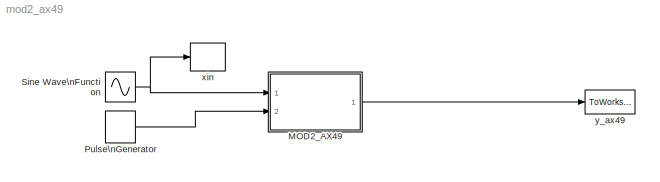
MODEL mod2_ax49
KIND model
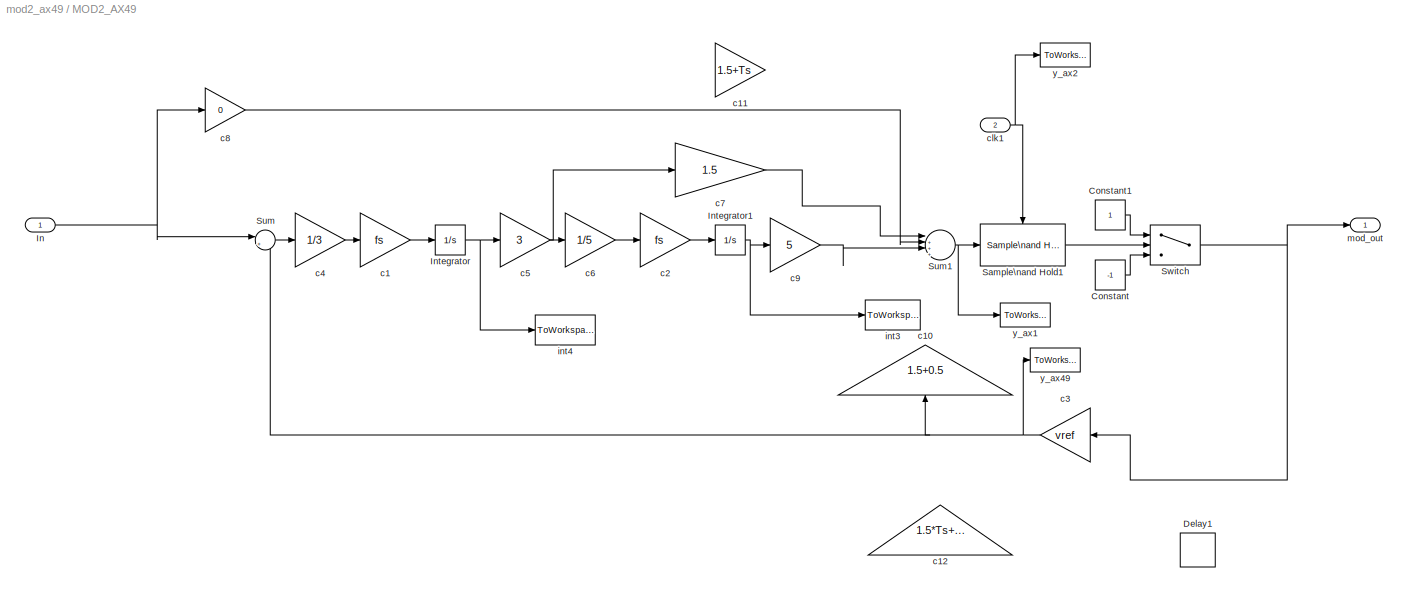
BLOCK [SubSystem] MOD2_AX49
  Ports = [2, 1]
  RequestExecContextInheritance = off
  SID = 988
BLOCK [Constant] MOD2_AX49/Constant
  SID = 1156
  Value = -1
BLOCK [Constant] MOD2_AX49/Constant1
  SID = 1157
BLOCK [Delay] MOD2_AX49/Delay1
  Commented = on
  DelayLength = 1
  InitialCondition = 0
  InputPortMap = u0
  Ports = [1, 1]
  SID = 1229
  SampleTime = Ts
BLOCK [Inport] MOD2_AX49/In
  IconDisplay = Port number
  SID = 989
BLOCK [Integrator] MOD2_AX49/Integrator
  Ports = [1, 1]
  SID = 1124
BLOCK [Integrator] MOD2_AX49/Integrator1
  Ports = [1, 1]
  SID = 1164
BLOCK [Reference] MOD2_AX49/Sample\nand Hold1  REF=dspsigops/Sample\nand Hold
  Ports = [1, 1, 0, 1]
  RTWMemSecDataConstants = Inherit from model
  RTWMemSecDataInternal = Inherit from model
  RTWMemSecDataParameters = Inherit from model
  RTWMemSecFuncExecute = Inherit from model
  RTWMemSecFuncInitTerm = Inherit from model
  SID = 1174
  SourceBlock = dspsigops/Sample\nand Hold
  SourceProductBaseCode = DS
  SourceProductName = DSP System Toolbox
  SourceType = Sample and Hold
  initCond = 0
  latchinput = off
  trig = Rising edge
BLOCK [Sum] MOD2_AX49/Sum
  IconShape = round
  InputSameDT = off
  Inputs = |+-
  OutDataTypeStr = Inherit: Inherit via internal rule
  Ports = [2, 1]
  SID = 1134
  SaturateOnIntegerOverflow = off
BLOCK [Sum] MOD2_AX49/Sum1
  IconShape = round
  InputSameDT = off
  Inputs = |+++-
  OutDataTypeStr = Inherit: Inherit via internal rule
  Ports = [4, 1]
  SID = 1135
  SaturateOnIntegerOverflow = off
BLOCK [Switch] MOD2_AX49/Switch
  Criteria = u2 > Threshold
  InputSameDT = off
  SID = 1155
  SaturateOnIntegerOverflow = off
BLOCK [Gain] MOD2_AX49/c1
  Gain = fs
  SID = 1158
BLOCK [Gain] MOD2_AX49/c10
  Commented = on
  Gain = 1.5+0.5
  SID = 1170
BLOCK [Gain] MOD2_AX49/c11
  Commented = on
  Gain = 1.5+Ts
  SID = 1171
BLOCK [Gain] MOD2_AX49/c12
  Commented = on
  Gain = 1.5*Ts+0.5*Ts*Ts
  SID = 1172
BLOCK [Gain] MOD2_AX49/c2
  Gain = fs
  SID = 1165
BLOCK [Gain] MOD2_AX49/c3
  Gain = vref
  SID = 1154
BLOCK [Gain] MOD2_AX49/c4
  Gain = 1/3
  SID = 1160
BLOCK [Gain] MOD2_AX49/c5
  Gain = 3
  SID = 1161
BLOCK [Gain] MOD2_AX49/c6
  Gain = 1/5
  SID = 1162
BLOCK [Gain] MOD2_AX49/c7
  Gain = 1.5
  SID = 1071
BLOCK [Gain] MOD2_AX49/c8
  Gain = 0
  SID = 1072
BLOCK [Gain] MOD2_AX49/c9
  Gain = 5
  SID = 1163
BLOCK [Inport] MOD2_AX49/clk1
  IconDisplay = Port number
  Port = 2
  SID = 1173
BLOCK [ToWorkspace] MOD2_AX49/int3
  MaxDataPoints = inf
  Ports = [1]
  SID = 1061
  SampleTime = -1
  VariableName = int2
BLOCK [ToWorkspace] MOD2_AX49/int4
  MaxDataPoints = inf
  Ports = [1]
  SID = 1060
  SampleTime = -1
  VariableName = int1
BLOCK [Outport] MOD2_AX49/mod_out
  IconDisplay = Port number
  SID = 1058
  VectorParamsAs1DForOutWhenUnconnected = off
BLOCK [ToWorkspace] MOD2_AX49/y_ax1
  MaxDataPoints = inf
  Ports = [1]
  SID = 1178
  SampleTime = Ts/4
  SaveFormat = Structure With Time
  VariableName = y_add
BLOCK [ToWorkspace] MOD2_AX49/y_ax2
  MaxDataPoints = inf
  Ports = [1]
  SID = 1179
  SampleTime = Ts/4
  SaveFormat = Structure With Time
  VariableName = y_clk
BLOCK [ToWorkspace] MOD2_AX49/y_ax49
  MaxDataPoints = inf
  Ports = [1]
  SID = 1177
  SampleTime = Ts/4
  SaveFormat = Structure With Time
  VariableName = y_fb
BLOCK [DiscretePulseGenerator] Pulse\nGenerator
  Period = Ts
  Ports = [0, 1]
  PulseType = Time based
  PulseWidth = 50
  SID = 1129
BLOCK [Sin] Sine Wave\nFunction
  Amplitude = vin_amp
  Frequency = fsig*2*pi
  Ports = [0, 1]
  SID = 1130
  SampleTime = 0
BLOCK [ToWorkspace] xin
  MaxDataPoints = inf
  Ports = [1]
  SID = 60
  SampleTime = -1
  VariableName = xin
BLOCK [ToWorkspace] y_ax49
  MaxDataPoints = inf
  Ports = [1]
  SID = 1059
  SampleTime = Ts
  VariableName = y_ax49
LINE MOD2_AX49/Constant1:1 -> MOD2_AX49/Switch:1
LINE MOD2_AX49/Constant:1 -> MOD2_AX49/Switch:3
NET MOD2_AX49/In:1 -> MOD2_AX49/Sum:1, MOD2_AX49/c8:1
NET MOD2_AX49/Integrator1:1 -> MOD2_AX49/c9:1, MOD2_AX49/int3:1
NET MOD2_AX49/Integrator:1 -> MOD2_AX49/c5:1, MOD2_AX49/int4:1
LINE MOD2_AX49/Sample\nand Hold1:1 -> MOD2_AX49/Switch:2
NET MOD2_AX49/Sum1:1 -> MOD2_AX49/Sample\nand Hold1:1, MOD2_AX49/y_ax1:1
LINE MOD2_AX49/Sum:1 -> MOD2_AX49/c4:1
NET MOD2_AX49/Switch:1 -> MOD2_AX49/c3:1, MOD2_AX49/mod_out:1
LINE MOD2_AX49/c1:1 -> MOD2_AX49/Integrator:1
LINE MOD2_AX49/c2:1 -> MOD2_AX49/Integrator1:1
NET MOD2_AX49/c3:1 -> MOD2_AX49/Sum:2, MOD2_AX49/c10:1, MOD2_AX49/y_ax49:1
LINE MOD2_AX49/c4:1 -> MOD2_AX49/c1:1
NET MOD2_AX49/c5:1 -> MOD2_AX49/c6:1, MOD2_AX49/c7:1
LINE MOD2_AX49/c6:1 -> MOD2_AX49/c2:1
LINE MOD2_AX49/c7:1 -> MOD2_AX49/Sum1:1
LINE MOD2_AX49/c8:1 -> MOD2_AX49/Sum1:2
LINE MOD2_AX49/c9:1 -> MOD2_AX49/Sum1:3
NET MOD2_AX49/clk1:1 -> MOD2_AX49/Sample\nand Hold1:trigger, MOD2_AX49/y_ax2:1
LINE MOD2_AX49:1 -> y_ax49:1
LINE Pulse\nGenerator:1 -> MOD2_AX49:2
NET Sine Wave\nFunction:1 -> MOD2_AX49:1, xin:1
note: NET lines group one-source signal fan-out (src -> all destinations, sorted); 1:1 wires keep LINE
